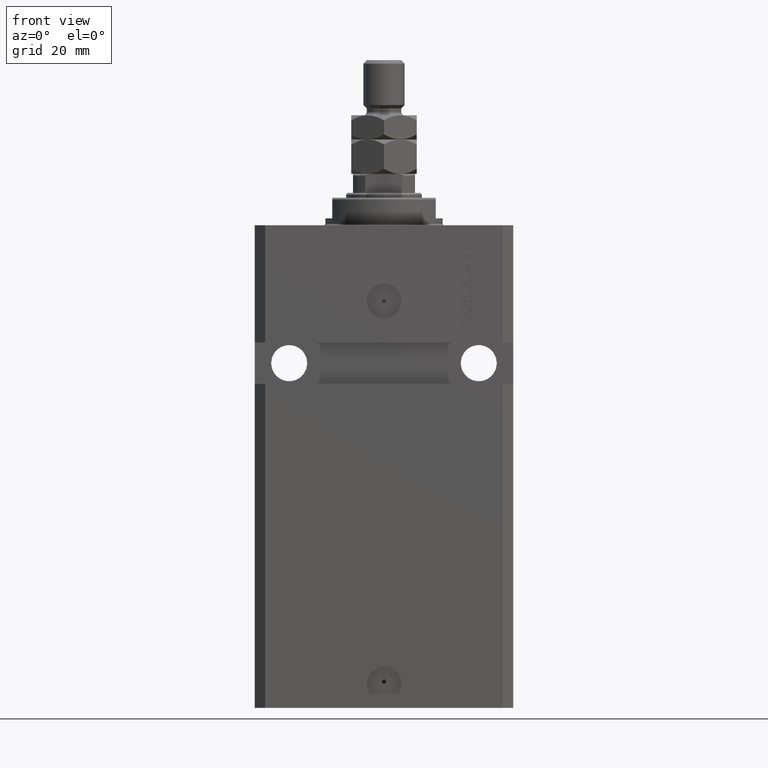
[diagram: clean part render]
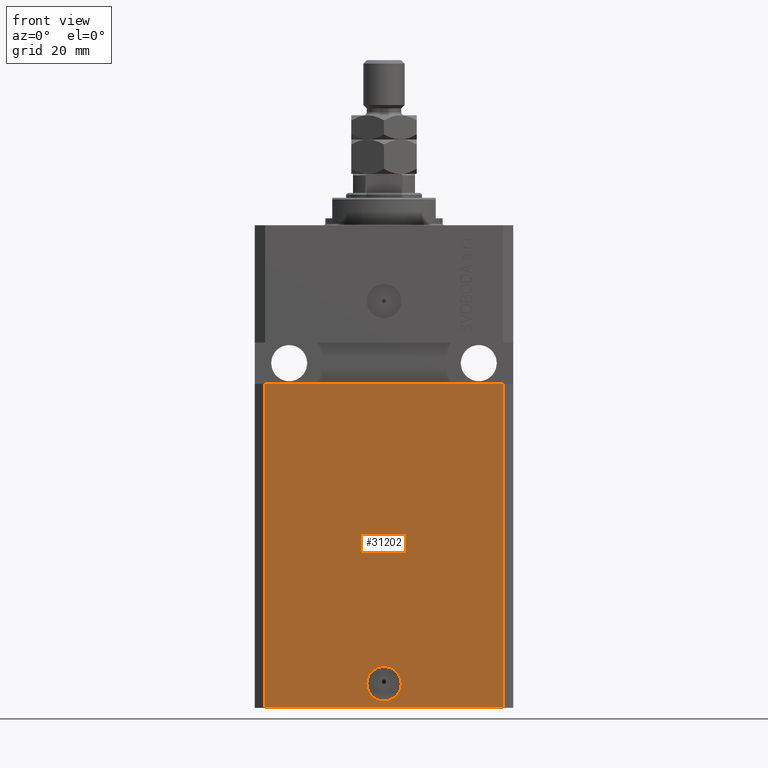
[diagram: same view with one face highlighted and labeled with its STEP entity id]
A machine part, front view. The second image highlights one B-rep face of the part: STEP entity #31202.
In plain terms, the highlighted planar face has unit normal (0, -1, 0).
Its self-contained STEP definition (entity closure, byte-faithful):
#291 = CARTESIAN_POINT ( 'NONE',  ( 0.000000000000000000, -27.49999999999999645, -133.0000000000000000 ) ) ;
#1266 = EDGE_LOOP ( 'NONE', ( #16283, #47339, #26251, #36485 ) ) ;
#1372 = CARTESIAN_POINT ( 'NONE',  ( -37.50000000000000000, -27.50000000000000000, -46.00000000000000000 ) ) ;
#2555 = AXIS2_PLACEMENT_3D ( 'NONE', #37886, #22950, #4352 ) ;
#2619 = AXIS2_PLACEMENT_3D ( 'NONE', #44652, #17745, #32682 ) ;
#3166 = CARTESIAN_POINT ( 'NONE',  ( 34.49999999999999289, -27.49999999999999289, -45.99999999999999289 ) ) ;
#4352 = DIRECTION ( 'NONE',  ( 1.000000000000000000, 0.000000000000000000, 0.000000000000000000 ) ) ;
#5854 = CARTESIAN_POINT ( 'NONE',  ( 34.49999999999999289, -27.49999999999999645, -140.0000000000000000 ) ) ;
#6117 = EDGE_CURVE ( 'NONE', #33857, #16719, #23245, .T. ) ;
#6458 = CARTESIAN_POINT ( 'NONE',  ( 5.000000000000006217, -27.49999999999999645, -133.0000000000000000 ) ) ;
#6469 = CIRCLE ( 'NONE', #2555, 5.000000000000006217 ) ;
#11532 = DIRECTION ( 'NONE',  ( 1.176083712526788232E-16, -1.000000000000000000, 0.000000000000000000 ) ) ;
#11557 = CARTESIAN_POINT ( 'NONE',  ( -34.49999999999998579, -27.49999999999999645, -140.0000000000000000 ) ) ;
#12005 = AXIS2_PLACEMENT_3D ( 'NONE', #291, #11532, #15449 ) ;
#12354 = VERTEX_POINT ( 'NONE', #6458 ) ;
#13387 = VERTEX_POINT ( 'NONE', #15248 ) ;
#14828 = ORIENTED_EDGE ( 'NONE', *, *, #25506, .F. ) ;
#15248 = CARTESIAN_POINT ( 'NONE',  ( -34.49999999999998579, -27.50000000000000000, -46.00000000000000000 ) ) ;
#15449 = DIRECTION ( 'NONE',  ( 1.000000000000000000, 0.000000000000000000, 0.000000000000000000 ) ) ;
#16283 = ORIENTED_EDGE ( 'NONE', *, *, #30977, .F. ) ;
#16719 = VERTEX_POINT ( 'NONE', #3166 ) ;
#16728 = CIRCLE ( 'NONE', #12005, 5.000000000000006217 ) ;
#17745 = DIRECTION ( 'NONE',  ( 0.000000000000000000, -1.000000000000000000, 0.000000000000000000 ) ) ;
#19484 = DIRECTION ( 'NONE',  ( 1.000000000000000000, 9.251858538542972814E-17, 9.251858538542972814E-17 ) ) ;
#20066 = DIRECTION ( 'NONE',  ( 0.000000000000000000, 0.000000000000000000, 1.000000000000000000 ) ) ;
#22950 = DIRECTION ( 'NONE',  ( 1.176083712526788232E-16, -1.000000000000000000, 0.000000000000000000 ) ) ;
#23155 = VECTOR ( 'NONE', #26016, 1000.000000000000000 ) ;
#23245 = LINE ( 'NONE', #23484, #24536 ) ;
#23484 = CARTESIAN_POINT ( 'NONE',  ( 34.49999999999999289, -27.49999999999999645, -140.0000000000000000 ) ) ;
#24536 = VECTOR ( 'NONE', #20066, 1000.000000000000000 ) ;
#24634 = CARTESIAN_POINT ( 'NONE',  ( -34.49999999999998579, -27.49999999999999645, -140.0000000000000000 ) ) ;
#25506 = EDGE_CURVE ( 'NONE', #45737, #12354, #6469, .T. ) ;
#26016 = DIRECTION ( 'NONE',  ( 1.000000000000000000, 0.000000000000000000, 0.000000000000000000 ) ) ;
#26050 = PLANE ( 'NONE',  #2619 ) ;
#26072 = EDGE_LOOP ( 'NONE', ( #32977, #14828 ) ) ;
#26251 = ORIENTED_EDGE ( 'NONE', *, *, #37897, .T. ) ;
#28323 = VECTOR ( 'NONE', #39572, 1000.000000000000000 ) ;
#29045 = EDGE_CURVE ( 'NONE', #12354, #45737, #16728, .T. ) ;
#30752 = VECTOR ( 'NONE', #19484, 1000.000000000000000 ) ;
#30977 = EDGE_CURVE ( 'NONE', #13387, #16719, #42490, .T. ) ;
#31202 = ADVANCED_FACE ( 'NONE', ( #37551, #33651 ), #26050, .T. ) ;
#32286 = CARTESIAN_POINT ( 'NONE',  ( -34.49999999999998579, -27.49999999999999645, -140.0000000000000000 ) ) ;
#32682 = DIRECTION ( 'NONE',  ( 0.000000000000000000, -0.000000000000000000, -1.000000000000000000 ) ) ;
#32977 = ORIENTED_EDGE ( 'NONE', *, *, #29045, .F. ) ;
#33619 = LINE ( 'NONE', #11557, #23155 ) ;
#33651 = FACE_OUTER_BOUND ( 'NONE', #1266, .T. ) ;
#33796 = CARTESIAN_POINT ( 'NONE',  ( -5.000000000000006217, -27.49999999999999645, -133.0000000000000000 ) ) ;
#33857 = VERTEX_POINT ( 'NONE', #5854 ) ;
#36485 = ORIENTED_EDGE ( 'NONE', *, *, #6117, .T. ) ;
#37551 = FACE_BOUND ( 'NONE', #26072, .T. ) ;
#37886 = CARTESIAN_POINT ( 'NONE',  ( 0.000000000000000000, -27.49999999999999645, -133.0000000000000000 ) ) ;
#37897 = EDGE_CURVE ( 'NONE', #44570, #33857, #33619, .T. ) ;
#39572 = DIRECTION ( 'NONE',  ( 0.000000000000000000, 0.000000000000000000, 1.000000000000000000 ) ) ;
#42490 = LINE ( 'NONE', #1372, #30752 ) ;
#44570 = VERTEX_POINT ( 'NONE', #32286 ) ;
#44652 = CARTESIAN_POINT ( 'NONE',  ( -34.49999999999998579, -27.49999999999999645, -140.0000000000000000 ) ) ;
#45737 = VERTEX_POINT ( 'NONE', #33796 ) ;
#46903 = LINE ( 'NONE', #24634, #28323 ) ;
#47339 = ORIENTED_EDGE ( 'NONE', *, *, #48312, .F. ) ;
#48312 = EDGE_CURVE ( 'NONE', #44570, #13387, #46903, .T. ) ;